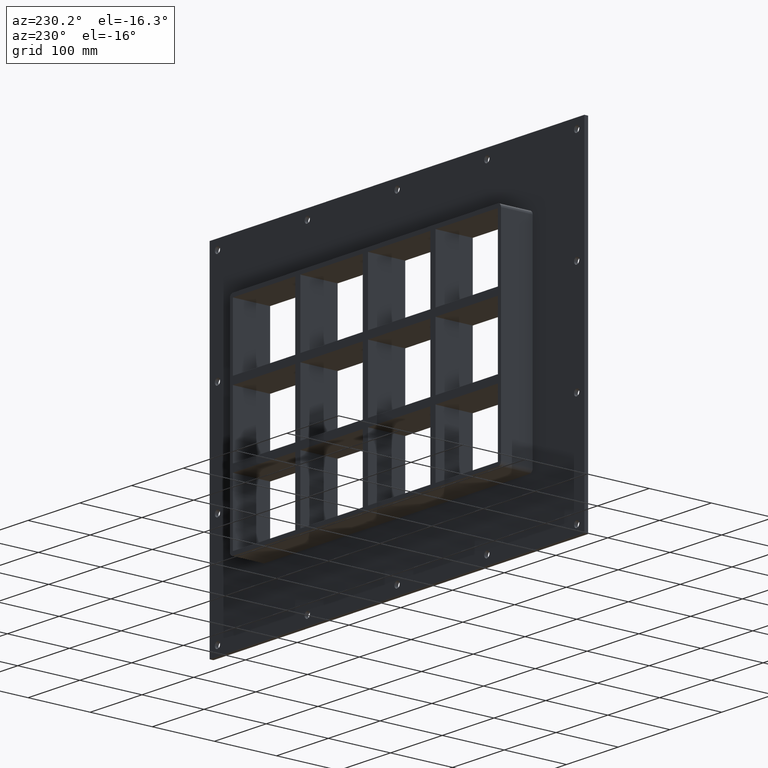
[diagram: clean part render]
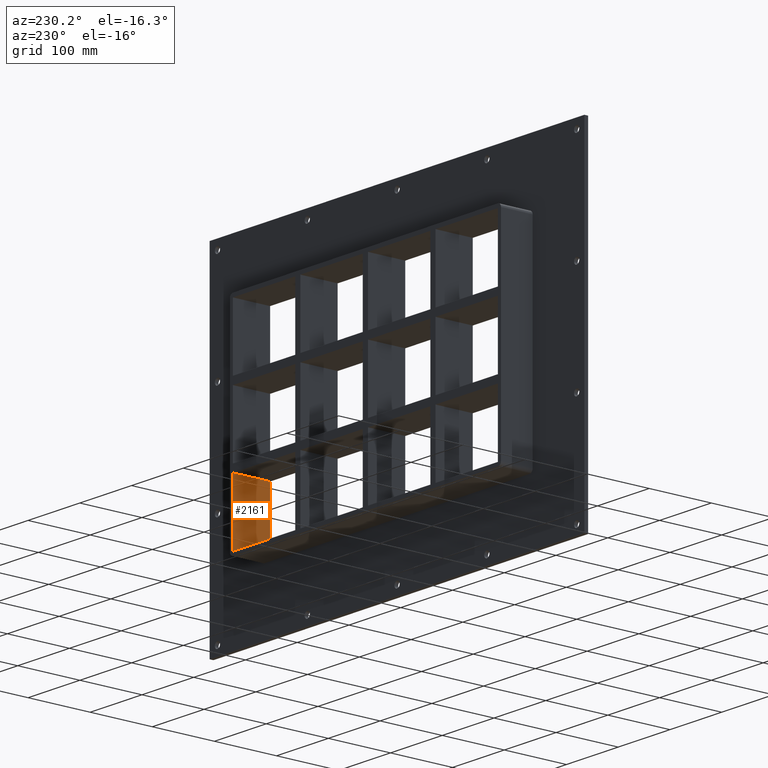
[diagram: same view with one face highlighted and labeled with its STEP entity id]
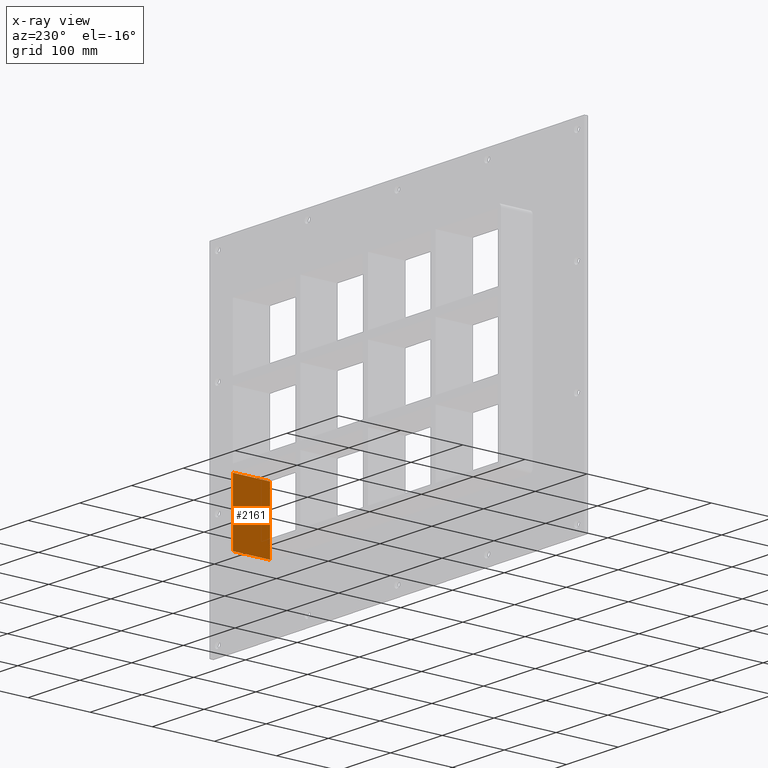
[diagram: x-ray of the same camera — body ghosted, the highlighted face saturated]
A machine part, auxiliary view. The second image highlights one B-rep face of the part: STEP entity #2161.
The next image is the same camera in x-ray: the body ghosted, the highlighted face saturated — about 0% of this face is hidden behind the body in this view.
In plain terms, the highlighted planar face has unit normal (1, 0, 0).
Its self-contained STEP definition (entity closure, byte-faithful):
#1399=CARTESIAN_POINT('',(256.0,57.0,-163.50000000000006));
#1400=VERTEX_POINT('',#1399);
#1407=CARTESIAN_POINT('',(256.00000000000364,57.0,-62.500000000009294));
#1408=VERTEX_POINT('',#1407);
#1409=CARTESIAN_POINT('',(256.0,57.0,-163.50000000000006));
#1410=DIRECTION('',(0.0,0.0,1.0));
#1411=VECTOR('',#1410,100.99999999999076);
#1412=LINE('',#1409,#1411);
#1413=EDGE_CURVE('',#1400,#1408,#1412,.T.);
#1699=CARTESIAN_POINT('',(256.0,-3.0,-163.50000000000006));
#1700=VERTEX_POINT('',#1699);
#1707=CARTESIAN_POINT('',(256.0,56.999999999999993,-163.50000000000006));
#1708=DIRECTION('',(0.0,-1.0,0.0));
#1709=VECTOR('',#1708,59.999999999999993);
#1710=LINE('',#1707,#1709);
#1711=EDGE_CURVE('',#1400,#1700,#1710,.T.);
#1924=CARTESIAN_POINT('',(256.00000000000364,-3.0,-62.500000000009294));
#1925=VERTEX_POINT('',#1924);
#1932=CARTESIAN_POINT('',(256.0,-3.0,-62.500000000009294));
#1933=DIRECTION('',(0.0,0.0,-1.0));
#1934=VECTOR('',#1933,100.99999999999076);
#1935=LINE('',#1932,#1934);
#1936=EDGE_CURVE('',#1925,#1700,#1935,.T.);
#1983=CARTESIAN_POINT('',(256.0,-3.0,-62.500000000009301));
#1984=DIRECTION('',(0.0,1.0,0.0));
#1985=VECTOR('',#1984,60.000000000000007);
#1986=LINE('',#1983,#1985);
#1987=EDGE_CURVE('',#1925,#1408,#1986,.T.);
#2150=CARTESIAN_POINT('',(256.0,0.0,163.5));
#2151=DIRECTION('',(1.0,0.0,0.0));
#2152=DIRECTION('',(0.0,0.0,-1.0));
#2153=AXIS2_PLACEMENT_3D('',#2150,#2151,#2152);
#2154=PLANE('',#2153);
#2155=ORIENTED_EDGE('',*,*,#1987,.T.);
#2156=ORIENTED_EDGE('',*,*,#1413,.F.);
#2157=ORIENTED_EDGE('',*,*,#1711,.T.);
#2158=ORIENTED_EDGE('',*,*,#1936,.F.);
#2159=EDGE_LOOP('',(#2155,#2156,#2157,#2158));
#2160=FACE_OUTER_BOUND('',#2159,.T.);
#2161=ADVANCED_FACE('',(#2160),#2154,.F.);